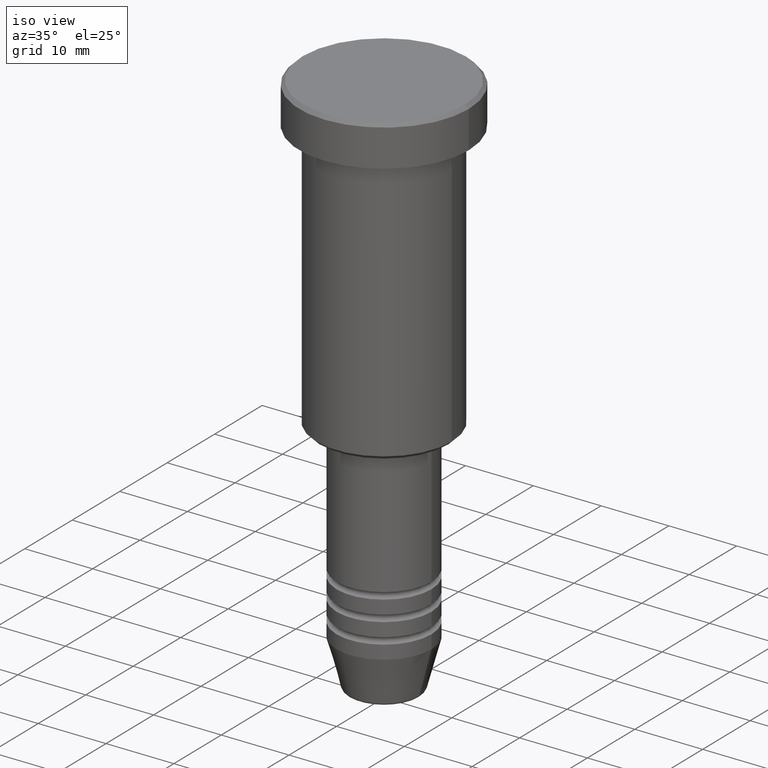
[diagram: clean part render]
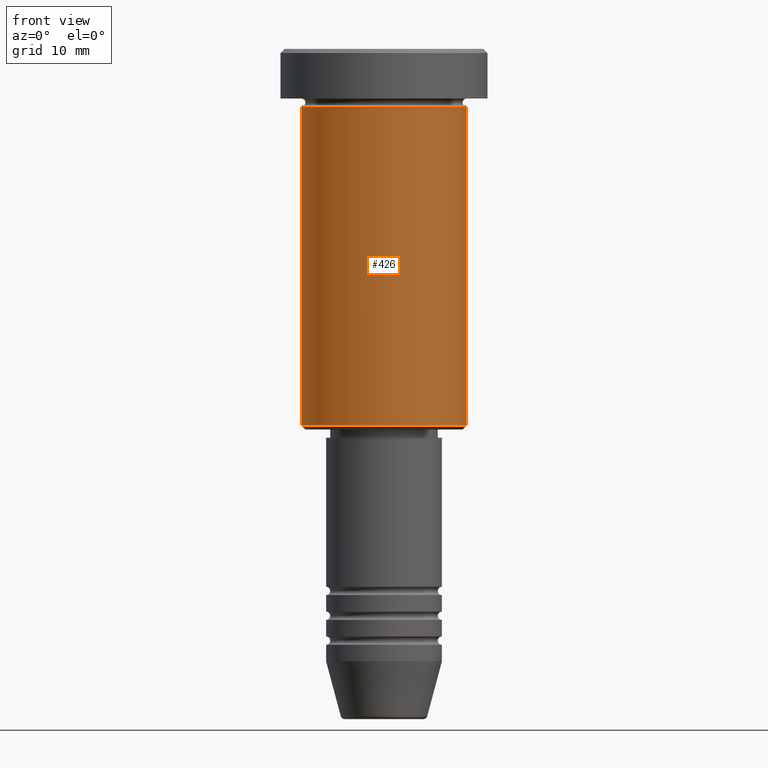
[diagram: tour spotlight — one face highlighted and labeled with its STEP entity id]
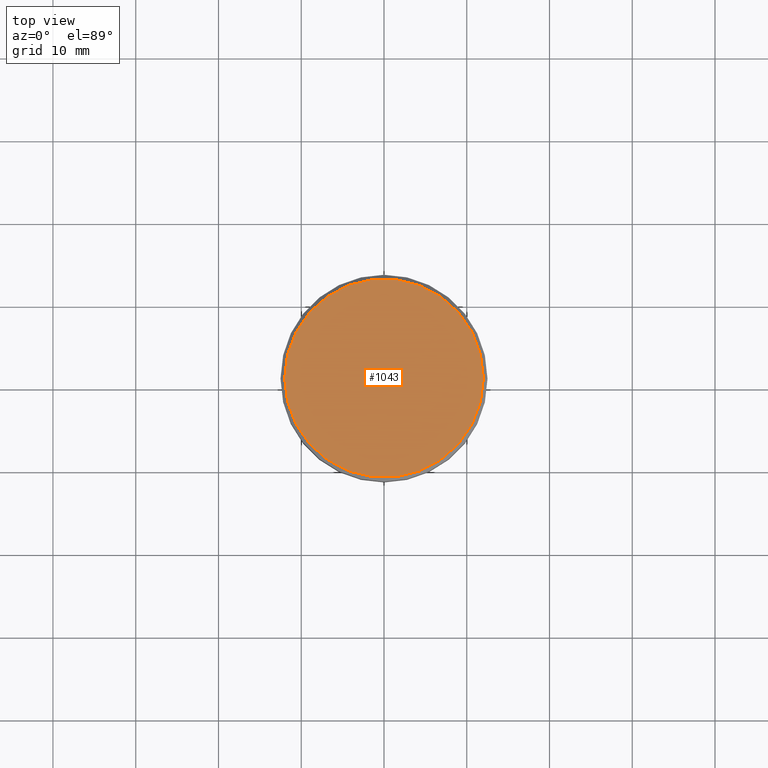
[diagram: tour spotlight — one face highlighted and labeled with its STEP entity id]
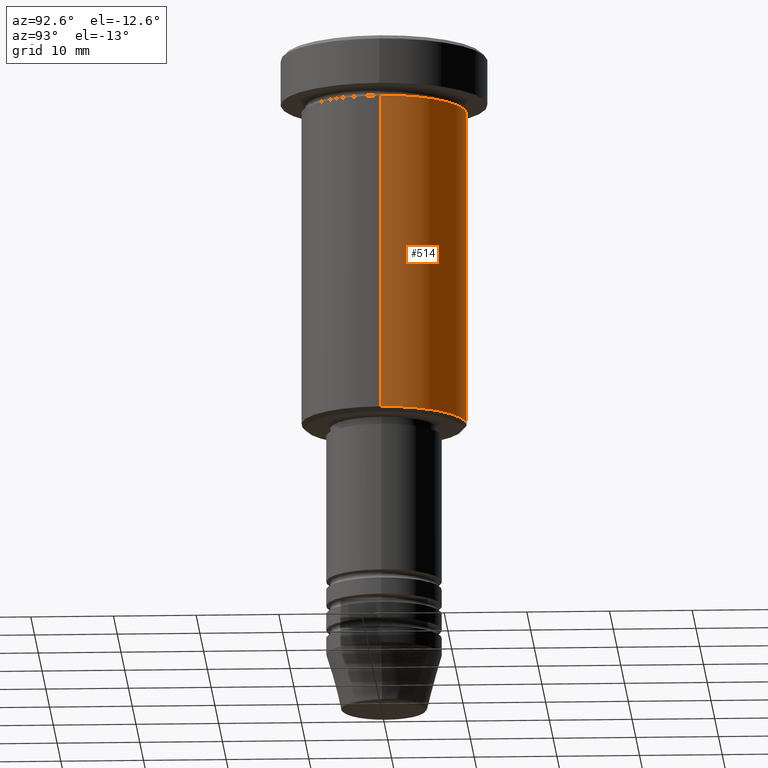
[diagram: tour spotlight — one face highlighted and labeled with its STEP entity id]
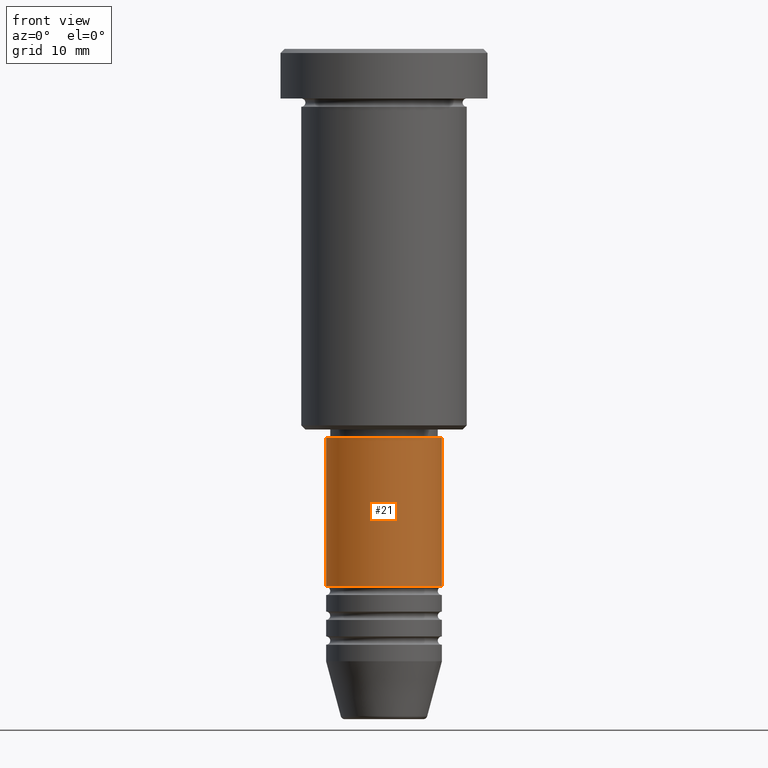
[diagram: tour spotlight — one face highlighted and labeled with its STEP entity id]
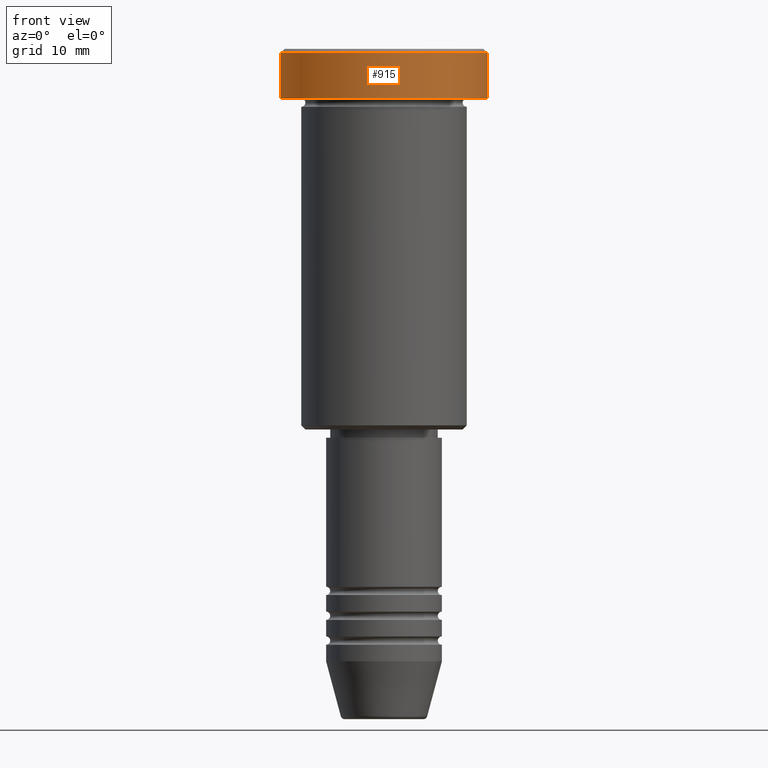
[diagram: tour spotlight — one face highlighted and labeled with its STEP entity id]
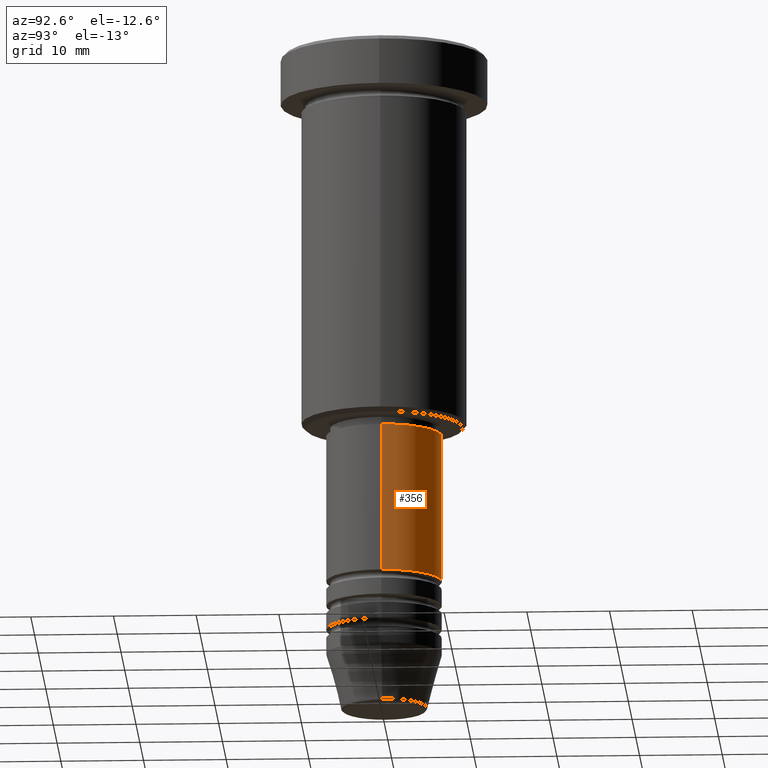
[diagram: tour spotlight — one face highlighted and labeled with its STEP entity id]
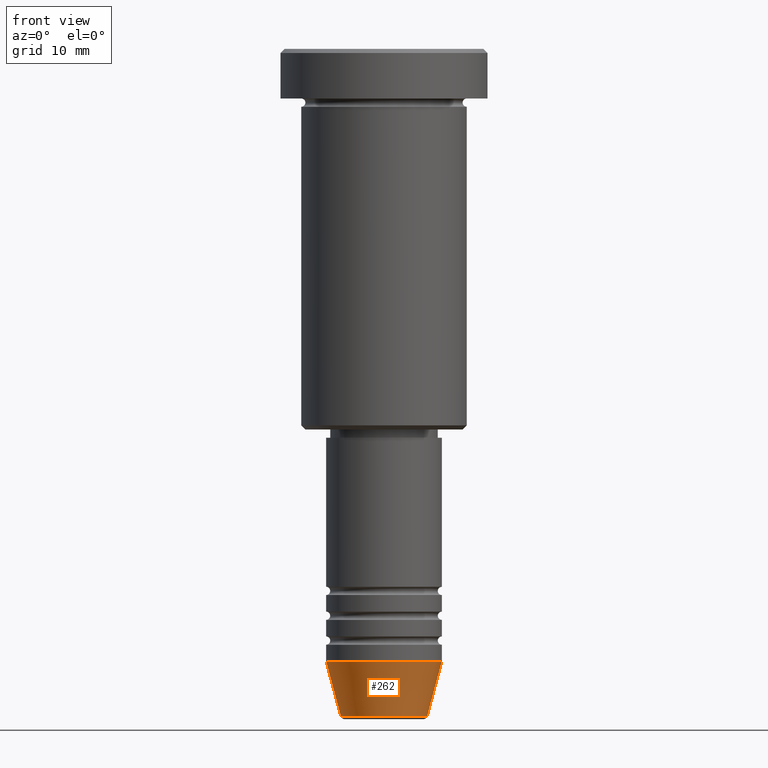
[diagram: tour spotlight — one face highlighted and labeled with its STEP entity id]
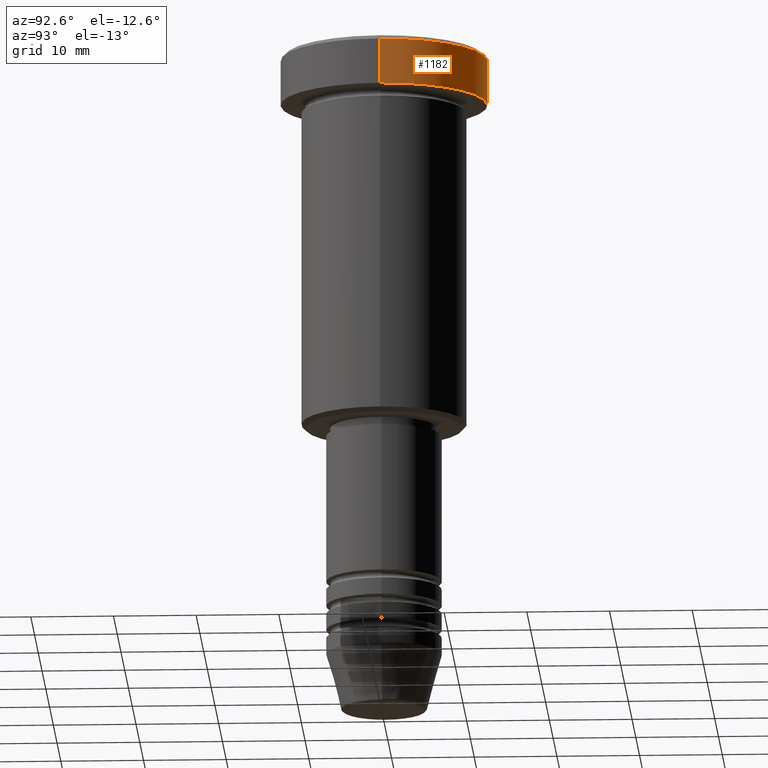
[diagram: tour spotlight — one face highlighted and labeled with its STEP entity id]
A machine part: a face-by-face anatomy tour. The part has 43 B-rep faces; the first image is the clean iso view, then the 8 largest visible faces are spotlighted one at a time (largest first), each with its STEP entity span.

Face 1 — front view, entity #426. In plain terms, the highlighted cylindrical surface (partial cylindrical patch) has radius 10 mm, axis along (-0, -0, 1).
Definition (entity closure, byte-faithful):
#16 = DIRECTION ( 'NONE',  ( 1.000000000000000000, 0.000000000000000000, 0.000000000000000000 ) ) ;
#49 = AXIS2_PLACEMENT_3D ( 'NONE', #1083, #364, #16 ) ;
#71 = CYLINDRICAL_SURFACE ( 'NONE', #541, 10.00000000000000000 ) ;
#81 = CARTESIAN_POINT ( 'NONE',  ( -10.00000000000000000, 1.224646799147353256E-15, -6.999999999999996447 ) ) ;
#115 = LINE ( 'NONE', #188, #921 ) ;
#170 = FACE_OUTER_BOUND ( 'NONE', #599, .T. ) ;
#188 = CARTESIAN_POINT ( 'NONE',  ( 10.00000000000000000, 0.000000000000000000, 0.000000000000000000 ) ) ;
#231 = EDGE_CURVE ( 'NONE', #338, #409, #658, .T. ) ;
#248 = VERTEX_POINT ( 'NONE', #740 ) ;
#265 = EDGE_CURVE ( 'NONE', #338, #483, #306, .T. ) ;
#306 = CIRCLE ( 'NONE', #440, 10.00000000000000000 ) ;
#338 = VERTEX_POINT ( 'NONE', #509 ) ;
#364 = DIRECTION ( 'NONE',  ( -0.000000000000000000, -0.000000000000000000, 1.000000000000000000 ) ) ;
#409 = VERTEX_POINT ( 'NONE', #81 ) ;
#426 = ADVANCED_FACE ( 'NONE', ( #170 ), #71, .T. ) ;
#440 = AXIS2_PLACEMENT_3D ( 'NONE', #593, #851, #573 ) ;
#466 = DIRECTION ( 'NONE',  ( -0.000000000000000000, -0.000000000000000000, 1.000000000000000000 ) ) ;
#483 = VERTEX_POINT ( 'NONE', #606 ) ;
#509 = CARTESIAN_POINT ( 'NONE',  ( -10.00000000000000000, 1.224646799147353256E-15, -45.50000000000001421 ) ) ;
#541 = AXIS2_PLACEMENT_3D ( 'NONE', #888, #814, #895 ) ;
#573 = DIRECTION ( 'NONE',  ( -1.000000000000000000, 0.000000000000000000, 0.000000000000000000 ) ) ;
#593 = CARTESIAN_POINT ( 'NONE',  ( 0.000000000000000000, 0.000000000000000000, -45.50000000000001421 ) ) ;
#599 = EDGE_LOOP ( 'NONE', ( #887, #798, #802, #808 ) ) ;
#606 = CARTESIAN_POINT ( 'NONE',  ( 10.00000000000000000, 0.000000000000000000, -45.50000000000001421 ) ) ;
#641 = EDGE_CURVE ( 'NONE', #483, #248, #115, .T. ) ;
#658 = LINE ( 'NONE', #793, #1030 ) ;
#702 = DIRECTION ( 'NONE',  ( -0.000000000000000000, -0.000000000000000000, 1.000000000000000000 ) ) ;
#740 = CARTESIAN_POINT ( 'NONE',  ( 10.00000000000000000, 0.000000000000000000, -6.999999999999996447 ) ) ;
#793 = CARTESIAN_POINT ( 'NONE',  ( -10.00000000000000000, 1.224646799147353256E-15, 0.000000000000000000 ) ) ;
#798 = ORIENTED_EDGE ( 'NONE', *, *, #265, .T. ) ;
#802 = ORIENTED_EDGE ( 'NONE', *, *, #641, .T. ) ;
#808 = ORIENTED_EDGE ( 'NONE', *, *, #1141, .F. ) ;
#814 = DIRECTION ( 'NONE',  ( -0.000000000000000000, -0.000000000000000000, 1.000000000000000000 ) ) ;
#851 = DIRECTION ( 'NONE',  ( -0.000000000000000000, -0.000000000000000000, 1.000000000000000000 ) ) ;
#887 = ORIENTED_EDGE ( 'NONE', *, *, #231, .F. ) ;
#888 = CARTESIAN_POINT ( 'NONE',  ( 0.000000000000000000, 0.000000000000000000, 0.000000000000000000 ) ) ;
#895 = DIRECTION ( 'NONE',  ( 1.000000000000000000, 0.000000000000000000, 0.000000000000000000 ) ) ;
#921 = VECTOR ( 'NONE', #466, 1000.000000000000000 ) ;
#1013 = CIRCLE ( 'NONE', #49, 10.00000000000000000 ) ;
#1030 = VECTOR ( 'NONE', #702, 1000.000000000000000 ) ;
#1083 = CARTESIAN_POINT ( 'NONE',  ( 0.000000000000000000, 0.000000000000000000, -6.999999999999996447 ) ) ;
#1141 = EDGE_CURVE ( 'NONE', #409, #248, #1013, .T. ) ;

Face 2 — top view, entity #1043. In plain terms, the highlighted planar face has unit normal (0, -0, 1).
Definition (entity closure, byte-faithful):
#2 = PLANE ( 'NONE',  #268 ) ;
#30 = AXIS2_PLACEMENT_3D ( 'NONE', #1177, #819, #1183 ) ;
#147 = VERTEX_POINT ( 'NONE', #384 ) ;
#192 = DIRECTION ( 'NONE',  ( 0.000000000000000000, -0.000000000000000000, 1.000000000000000000 ) ) ;
#268 = AXIS2_PLACEMENT_3D ( 'NONE', #646, #192, #378 ) ;
#297 = EDGE_CURVE ( 'NONE', #147, #911, #1153, .T. ) ;
#354 = CARTESIAN_POINT ( 'NONE',  ( 11.99999999999999645, 1.500192328955507537E-15, 0.000000000000000000 ) ) ;
#378 = DIRECTION ( 'NONE',  ( 1.000000000000000000, 0.000000000000000000, 0.000000000000000000 ) ) ;
#384 = CARTESIAN_POINT ( 'NONE',  ( -11.99999999999999645, 0.000000000000000000, 0.000000000000000000 ) ) ;
#461 = EDGE_CURVE ( 'NONE', #911, #147, #865, .T. ) ;
#476 = AXIS2_PLACEMENT_3D ( 'NONE', #864, #874, #856 ) ;
#610 = EDGE_LOOP ( 'NONE', ( #774, #1088 ) ) ;
#646 = CARTESIAN_POINT ( 'NONE',  ( 0.000000000000000000, 0.000000000000000000, 0.000000000000000000 ) ) ;
#774 = ORIENTED_EDGE ( 'NONE', *, *, #297, .T. ) ;
#819 = DIRECTION ( 'NONE',  ( -0.000000000000000000, -0.000000000000000000, 1.000000000000000000 ) ) ;
#856 = DIRECTION ( 'NONE',  ( 1.000000000000000000, 0.000000000000000000, 0.000000000000000000 ) ) ;
#864 = CARTESIAN_POINT ( 'NONE',  ( 0.000000000000000000, 0.000000000000000000, 0.000000000000000000 ) ) ;
#865 = CIRCLE ( 'NONE', #30, 11.99999999999999645 ) ;
#874 = DIRECTION ( 'NONE',  ( -0.000000000000000000, -0.000000000000000000, 1.000000000000000000 ) ) ;
#911 = VERTEX_POINT ( 'NONE', #354 ) ;
#1009 = FACE_OUTER_BOUND ( 'NONE', #610, .T. ) ;
#1043 = ADVANCED_FACE ( 'NONE', ( #1009 ), #2, .T. ) ;
#1088 = ORIENTED_EDGE ( 'NONE', *, *, #461, .T. ) ;
#1153 = CIRCLE ( 'NONE', #476, 11.99999999999999645 ) ;
#1177 = CARTESIAN_POINT ( 'NONE',  ( 0.000000000000000000, 0.000000000000000000, 0.000000000000000000 ) ) ;
#1183 = DIRECTION ( 'NONE',  ( 1.000000000000000000, 0.000000000000000000, 0.000000000000000000 ) ) ;

Face 3 — auxiliary view, entity #514. In plain terms, the highlighted cylindrical surface (partial cylindrical patch) has radius 10 mm, axis along (-0, -0, 1).
Definition (entity closure, byte-faithful):
#68 = DIRECTION ( 'NONE',  ( 1.000000000000000000, 0.000000000000000000, 0.000000000000000000 ) ) ;
#81 = CARTESIAN_POINT ( 'NONE',  ( -10.00000000000000000, 1.224646799147353256E-15, -6.999999999999996447 ) ) ;
#97 = EDGE_CURVE ( 'NONE', #483, #338, #196, .T. ) ;
#115 = LINE ( 'NONE', #188, #921 ) ;
#176 = AXIS2_PLACEMENT_3D ( 'NONE', #515, #880, #68 ) ;
#188 = CARTESIAN_POINT ( 'NONE',  ( 10.00000000000000000, 0.000000000000000000, 0.000000000000000000 ) ) ;
#196 = CIRCLE ( 'NONE', #633, 10.00000000000000000 ) ;
#231 = EDGE_CURVE ( 'NONE', #338, #409, #658, .T. ) ;
#248 = VERTEX_POINT ( 'NONE', #740 ) ;
#275 = CARTESIAN_POINT ( 'NONE',  ( 0.000000000000000000, 0.000000000000000000, -45.50000000000001421 ) ) ;
#338 = VERTEX_POINT ( 'NONE', #509 ) ;
#339 = ORIENTED_EDGE ( 'NONE', *, *, #641, .F. ) ;
#343 = DIRECTION ( 'NONE',  ( -0.000000000000000000, -0.000000000000000000, 1.000000000000000000 ) ) ;
#344 = ORIENTED_EDGE ( 'NONE', *, *, #231, .T. ) ;
#409 = VERTEX_POINT ( 'NONE', #81 ) ;
#433 = CARTESIAN_POINT ( 'NONE',  ( 0.000000000000000000, 0.000000000000000000, 0.000000000000000000 ) ) ;
#466 = DIRECTION ( 'NONE',  ( -0.000000000000000000, -0.000000000000000000, 1.000000000000000000 ) ) ;
#483 = VERTEX_POINT ( 'NONE', #606 ) ;
#503 = EDGE_LOOP ( 'NONE', ( #869, #344, #970, #339 ) ) ;
#509 = CARTESIAN_POINT ( 'NONE',  ( -10.00000000000000000, 1.224646799147353256E-15, -45.50000000000001421 ) ) ;
#514 = ADVANCED_FACE ( 'NONE', ( #881 ), #1159, .T. ) ;
#515 = CARTESIAN_POINT ( 'NONE',  ( 0.000000000000000000, 0.000000000000000000, -6.999999999999996447 ) ) ;
#524 = DIRECTION ( 'NONE',  ( 1.000000000000000000, 0.000000000000000000, 0.000000000000000000 ) ) ;
#542 = AXIS2_PLACEMENT_3D ( 'NONE', #433, #343, #524 ) ;
#606 = CARTESIAN_POINT ( 'NONE',  ( 10.00000000000000000, 0.000000000000000000, -45.50000000000001421 ) ) ;
#633 = AXIS2_PLACEMENT_3D ( 'NONE', #275, #1004, #979 ) ;
#641 = EDGE_CURVE ( 'NONE', #483, #248, #115, .T. ) ;
#658 = LINE ( 'NONE', #793, #1030 ) ;
#702 = DIRECTION ( 'NONE',  ( -0.000000000000000000, -0.000000000000000000, 1.000000000000000000 ) ) ;
#740 = CARTESIAN_POINT ( 'NONE',  ( 10.00000000000000000, 0.000000000000000000, -6.999999999999996447 ) ) ;
#793 = CARTESIAN_POINT ( 'NONE',  ( -10.00000000000000000, 1.224646799147353256E-15, 0.000000000000000000 ) ) ;
#869 = ORIENTED_EDGE ( 'NONE', *, *, #97, .T. ) ;
#880 = DIRECTION ( 'NONE',  ( -0.000000000000000000, -0.000000000000000000, 1.000000000000000000 ) ) ;
#881 = FACE_OUTER_BOUND ( 'NONE', #503, .T. ) ;
#921 = VECTOR ( 'NONE', #466, 1000.000000000000000 ) ;
#970 = ORIENTED_EDGE ( 'NONE', *, *, #971, .F. ) ;
#971 = EDGE_CURVE ( 'NONE', #248, #409, #1102, .T. ) ;
#979 = DIRECTION ( 'NONE',  ( -1.000000000000000000, 0.000000000000000000, 0.000000000000000000 ) ) ;
#1004 = DIRECTION ( 'NONE',  ( -0.000000000000000000, -0.000000000000000000, 1.000000000000000000 ) ) ;
#1030 = VECTOR ( 'NONE', #702, 1000.000000000000000 ) ;
#1102 = CIRCLE ( 'NONE', #176, 10.00000000000000000 ) ;
#1159 = CYLINDRICAL_SURFACE ( 'NONE', #542, 10.00000000000000000 ) ;

Face 4 — front view, entity #21. In plain terms, the highlighted cylindrical surface (partial cylindrical patch) has radius 7 mm, axis along (-0, -0, 1).
Definition (entity closure, byte-faithful):
#21 = ADVANCED_FACE ( 'NONE', ( #1078 ), #1163, .T. ) ;
#25 = AXIS2_PLACEMENT_3D ( 'NONE', #795, #608, #885 ) ;
#44 = EDGE_CURVE ( 'NONE', #815, #277, #671, .T. ) ;
#99 = VERTEX_POINT ( 'NONE', #361 ) ;
#186 = LINE ( 'NONE', #463, #478 ) ;
#249 = ORIENTED_EDGE ( 'NONE', *, *, #552, .F. ) ;
#271 = AXIS2_PLACEMENT_3D ( 'NONE', #643, #735, #547 ) ;
#277 = VERTEX_POINT ( 'NONE', #771 ) ;
#361 = CARTESIAN_POINT ( 'NONE',  ( -7.000000000000000000, 8.572527594031473190E-16, -64.99999999999998579 ) ) ;
#401 = CIRCLE ( 'NONE', #25, 7.000000000000000000 ) ;
#463 = CARTESIAN_POINT ( 'NONE',  ( -7.000000000000000000, 8.572527594031473190E-16, 0.000000000000000000 ) ) ;
#478 = VECTOR ( 'NONE', #829, 1000.000000000000000 ) ;
#493 = CARTESIAN_POINT ( 'NONE',  ( 7.000000000000000000, 0.000000000000000000, 0.000000000000000000 ) ) ;
#510 = EDGE_LOOP ( 'NONE', ( #249, #803, #536, #1062 ) ) ;
#536 = ORIENTED_EDGE ( 'NONE', *, *, #731, .T. ) ;
#547 = DIRECTION ( 'NONE',  ( 1.000000000000000000, 0.000000000000000000, 0.000000000000000000 ) ) ;
#552 = EDGE_CURVE ( 'NONE', #99, #815, #186, .T. ) ;
#579 = CARTESIAN_POINT ( 'NONE',  ( 7.000000000000000000, 0.000000000000000000, -64.99999999999998579 ) ) ;
#608 = DIRECTION ( 'NONE',  ( -0.000000000000000000, -0.000000000000000000, 1.000000000000000000 ) ) ;
#627 = DIRECTION ( 'NONE',  ( 1.000000000000000000, 0.000000000000000000, 0.000000000000000000 ) ) ;
#643 = CARTESIAN_POINT ( 'NONE',  ( 0.000000000000000000, 0.000000000000000000, 0.000000000000000000 ) ) ;
#671 = CIRCLE ( 'NONE', #693, 7.000000000000000000 ) ;
#693 = AXIS2_PLACEMENT_3D ( 'NONE', #717, #1074, #627 ) ;
#706 = VERTEX_POINT ( 'NONE', #579 ) ;
#717 = CARTESIAN_POINT ( 'NONE',  ( 0.000000000000000000, 0.000000000000000000, -47.00000000000001421 ) ) ;
#731 = EDGE_CURVE ( 'NONE', #706, #277, #1023, .T. ) ;
#735 = DIRECTION ( 'NONE',  ( -0.000000000000000000, -0.000000000000000000, 1.000000000000000000 ) ) ;
#771 = CARTESIAN_POINT ( 'NONE',  ( 7.000000000000000000, 0.000000000000000000, -47.00000000000001421 ) ) ;
#795 = CARTESIAN_POINT ( 'NONE',  ( 0.000000000000000000, 0.000000000000000000, -64.99999999999998579 ) ) ;
#803 = ORIENTED_EDGE ( 'NONE', *, *, #984, .T. ) ;
#815 = VERTEX_POINT ( 'NONE', #860 ) ;
#828 = VECTOR ( 'NONE', #1111, 1000.000000000000000 ) ;
#829 = DIRECTION ( 'NONE',  ( -0.000000000000000000, -0.000000000000000000, 1.000000000000000000 ) ) ;
#860 = CARTESIAN_POINT ( 'NONE',  ( -7.000000000000000000, 8.572527594031473190E-16, -47.00000000000001421 ) ) ;
#885 = DIRECTION ( 'NONE',  ( 1.000000000000000000, 0.000000000000000000, 0.000000000000000000 ) ) ;
#984 = EDGE_CURVE ( 'NONE', #99, #706, #401, .T. ) ;
#1023 = LINE ( 'NONE', #493, #828 ) ;
#1062 = ORIENTED_EDGE ( 'NONE', *, *, #44, .F. ) ;
#1074 = DIRECTION ( 'NONE',  ( -0.000000000000000000, -0.000000000000000000, 1.000000000000000000 ) ) ;
#1078 = FACE_OUTER_BOUND ( 'NONE', #510, .T. ) ;
#1111 = DIRECTION ( 'NONE',  ( -0.000000000000000000, -0.000000000000000000, 1.000000000000000000 ) ) ;
#1163 = CYLINDRICAL_SURFACE ( 'NONE', #271, 7.000000000000000000 ) ;

Face 5 — front view, entity #915. In plain terms, the highlighted cylindrical surface (partial cylindrical patch) has radius 12.5 mm, axis along (-0, -0, 1).
Definition (entity closure, byte-faithful):
#6 = ORIENTED_EDGE ( 'NONE', *, *, #82, .T. ) ;
#82 = EDGE_CURVE ( 'NONE', #963, #226, #1065, .T. ) ;
#92 = CIRCLE ( 'NONE', #997, 12.50000000000000000 ) ;
#199 = CIRCLE ( 'NONE', #522, 12.50000000000000000 ) ;
#226 = VERTEX_POINT ( 'NONE', #1109 ) ;
#243 = CARTESIAN_POINT ( 'NONE',  ( 12.50000000000000000, 0.000000000000000000, -5.999999999999996447 ) ) ;
#253 = CARTESIAN_POINT ( 'NONE',  ( -12.50000000000000000, 1.530808498934191521E-15, -0.5000000000000056621 ) ) ;
#302 = AXIS2_PLACEMENT_3D ( 'NONE', #438, #700, #521 ) ;
#315 = DIRECTION ( 'NONE',  ( -0.000000000000000000, -0.000000000000000000, 1.000000000000000000 ) ) ;
#396 = CARTESIAN_POINT ( 'NONE',  ( 0.000000000000000000, 0.000000000000000000, -5.999999999999996447 ) ) ;
#410 = EDGE_LOOP ( 'NONE', ( #906, #1178, #6, #418 ) ) ;
#418 = ORIENTED_EDGE ( 'NONE', *, *, #603, .T. ) ;
#438 = CARTESIAN_POINT ( 'NONE',  ( 0.000000000000000000, 0.000000000000000000, 0.000000000000000000 ) ) ;
#445 = DIRECTION ( 'NONE',  ( -0.000000000000000000, -0.000000000000000000, 1.000000000000000000 ) ) ;
#454 = LINE ( 'NONE', #821, #473 ) ;
#473 = VECTOR ( 'NONE', #649, 1000.000000000000000 ) ;
#521 = DIRECTION ( 'NONE',  ( 1.000000000000000000, 0.000000000000000000, 0.000000000000000000 ) ) ;
#522 = AXIS2_PLACEMENT_3D ( 'NONE', #1000, #1020, #833 ) ;
#526 = FACE_OUTER_BOUND ( 'NONE', #410, .T. ) ;
#603 = EDGE_CURVE ( 'NONE', #226, #897, #199, .T. ) ;
#649 = DIRECTION ( 'NONE',  ( -0.000000000000000000, -0.000000000000000000, 1.000000000000000000 ) ) ;
#689 = VERTEX_POINT ( 'NONE', #1047 ) ;
#700 = DIRECTION ( 'NONE',  ( -0.000000000000000000, -0.000000000000000000, 1.000000000000000000 ) ) ;
#727 = EDGE_CURVE ( 'NONE', #689, #963, #92, .T. ) ;
#821 = CARTESIAN_POINT ( 'NONE',  ( -12.50000000000000000, 1.530808498934191521E-15, 0.000000000000000000 ) ) ;
#833 = DIRECTION ( 'NONE',  ( 1.000000000000000000, 0.000000000000000000, 0.000000000000000000 ) ) ;
#894 = CYLINDRICAL_SURFACE ( 'NONE', #302, 12.50000000000000000 ) ;
#897 = VERTEX_POINT ( 'NONE', #253 ) ;
#906 = ORIENTED_EDGE ( 'NONE', *, *, #1022, .F. ) ;
#915 = ADVANCED_FACE ( 'NONE', ( #526 ), #894, .T. ) ;
#957 = DIRECTION ( 'NONE',  ( 1.000000000000000000, 0.000000000000000000, 0.000000000000000000 ) ) ;
#963 = VERTEX_POINT ( 'NONE', #243 ) ;
#983 = CARTESIAN_POINT ( 'NONE',  ( 12.50000000000000000, 0.000000000000000000, 0.000000000000000000 ) ) ;
#994 = VECTOR ( 'NONE', #445, 1000.000000000000000 ) ;
#997 = AXIS2_PLACEMENT_3D ( 'NONE', #396, #315, #957 ) ;
#1000 = CARTESIAN_POINT ( 'NONE',  ( 0.000000000000000000, 0.000000000000000000, -0.5000000000000056621 ) ) ;
#1020 = DIRECTION ( 'NONE',  ( 0.000000000000000000, 0.000000000000000000, -1.000000000000000000 ) ) ;
#1022 = EDGE_CURVE ( 'NONE', #689, #897, #454, .T. ) ;
#1047 = CARTESIAN_POINT ( 'NONE',  ( -12.50000000000000000, 1.530808498934191521E-15, -5.999999999999996447 ) ) ;
#1065 = LINE ( 'NONE', #983, #994 ) ;
#1109 = CARTESIAN_POINT ( 'NONE',  ( 12.50000000000000000, 0.000000000000000000, -0.5000000000000056621 ) ) ;
#1178 = ORIENTED_EDGE ( 'NONE', *, *, #727, .T. ) ;

Face 6 — auxiliary view, entity #356. In plain terms, the highlighted cylindrical surface (partial cylindrical patch) has radius 7 mm, axis along (-0, -0, 1).
Definition (entity closure, byte-faithful):
#99 = VERTEX_POINT ( 'NONE', #361 ) ;
#105 = CIRCLE ( 'NONE', #420, 7.000000000000000000 ) ;
#135 = CARTESIAN_POINT ( 'NONE',  ( 0.000000000000000000, 0.000000000000000000, -64.99999999999998579 ) ) ;
#142 = ORIENTED_EDGE ( 'NONE', *, *, #731, .F. ) ;
#150 = CARTESIAN_POINT ( 'NONE',  ( 0.000000000000000000, 0.000000000000000000, 0.000000000000000000 ) ) ;
#186 = LINE ( 'NONE', #463, #478 ) ;
#266 = DIRECTION ( 'NONE',  ( 1.000000000000000000, 0.000000000000000000, 0.000000000000000000 ) ) ;
#277 = VERTEX_POINT ( 'NONE', #771 ) ;
#299 = DIRECTION ( 'NONE',  ( 1.000000000000000000, 0.000000000000000000, 0.000000000000000000 ) ) ;
#356 = ADVANCED_FACE ( 'NONE', ( #942 ), #582, .T. ) ;
#361 = CARTESIAN_POINT ( 'NONE',  ( -7.000000000000000000, 8.572527594031473190E-16, -64.99999999999998579 ) ) ;
#393 = DIRECTION ( 'NONE',  ( 1.000000000000000000, 0.000000000000000000, 0.000000000000000000 ) ) ;
#420 = AXIS2_PLACEMENT_3D ( 'NONE', #913, #1098, #266 ) ;
#460 = ORIENTED_EDGE ( 'NONE', *, *, #1060, .F. ) ;
#463 = CARTESIAN_POINT ( 'NONE',  ( -7.000000000000000000, 8.572527594031473190E-16, 0.000000000000000000 ) ) ;
#478 = VECTOR ( 'NONE', #829, 1000.000000000000000 ) ;
#493 = CARTESIAN_POINT ( 'NONE',  ( 7.000000000000000000, 0.000000000000000000, 0.000000000000000000 ) ) ;
#552 = EDGE_CURVE ( 'NONE', #99, #815, #186, .T. ) ;
#579 = CARTESIAN_POINT ( 'NONE',  ( 7.000000000000000000, 0.000000000000000000, -64.99999999999998579 ) ) ;
#582 = CYLINDRICAL_SURFACE ( 'NONE', #919, 7.000000000000000000 ) ;
#596 = ORIENTED_EDGE ( 'NONE', *, *, #1166, .T. ) ;
#706 = VERTEX_POINT ( 'NONE', #579 ) ;
#731 = EDGE_CURVE ( 'NONE', #706, #277, #1023, .T. ) ;
#759 = DIRECTION ( 'NONE',  ( -0.000000000000000000, -0.000000000000000000, 1.000000000000000000 ) ) ;
#771 = CARTESIAN_POINT ( 'NONE',  ( 7.000000000000000000, 0.000000000000000000, -47.00000000000001421 ) ) ;
#815 = VERTEX_POINT ( 'NONE', #860 ) ;
#828 = VECTOR ( 'NONE', #1111, 1000.000000000000000 ) ;
#829 = DIRECTION ( 'NONE',  ( -0.000000000000000000, -0.000000000000000000, 1.000000000000000000 ) ) ;
#857 = EDGE_LOOP ( 'NONE', ( #596, #936, #460, #142 ) ) ;
#860 = CARTESIAN_POINT ( 'NONE',  ( -7.000000000000000000, 8.572527594031473190E-16, -47.00000000000001421 ) ) ;
#913 = CARTESIAN_POINT ( 'NONE',  ( 0.000000000000000000, 0.000000000000000000, -47.00000000000001421 ) ) ;
#919 = AXIS2_PLACEMENT_3D ( 'NONE', #150, #1052, #393 ) ;
#936 = ORIENTED_EDGE ( 'NONE', *, *, #552, .T. ) ;
#942 = FACE_OUTER_BOUND ( 'NONE', #857, .T. ) ;
#1023 = LINE ( 'NONE', #493, #828 ) ;
#1052 = DIRECTION ( 'NONE',  ( -0.000000000000000000, -0.000000000000000000, 1.000000000000000000 ) ) ;
#1060 = EDGE_CURVE ( 'NONE', #277, #815, #105, .T. ) ;
#1068 = CIRCLE ( 'NONE', #1125, 7.000000000000000000 ) ;
#1098 = DIRECTION ( 'NONE',  ( -0.000000000000000000, -0.000000000000000000, 1.000000000000000000 ) ) ;
#1111 = DIRECTION ( 'NONE',  ( -0.000000000000000000, -0.000000000000000000, 1.000000000000000000 ) ) ;
#1125 = AXIS2_PLACEMENT_3D ( 'NONE', #135, #759, #299 ) ;
#1166 = EDGE_CURVE ( 'NONE', #706, #99, #1068, .T. ) ;

Face 7 — front view, entity #262. In plain terms, the highlighted conical surface has half-angle 15 deg.
Definition (entity closure, byte-faithful):
#35 = EDGE_CURVE ( 'NONE', #363, #523, #474, .T. ) ;
#73 = AXIS2_PLACEMENT_3D ( 'NONE', #647, #929, #377 ) ;
#80 = FACE_OUTER_BOUND ( 'NONE', #388, .T. ) ;
#144 = DIRECTION ( 'NONE',  ( 1.000000000000000000, 0.000000000000000000, 0.000000000000000000 ) ) ;
#166 = CARTESIAN_POINT ( 'NONE',  ( 5.223655072137187716, 0.000000000000000000, -80.62940952255128479 ) ) ;
#171 = EDGE_CURVE ( 'NONE', #523, #1082, #1024, .T. ) ;
#184 = DIRECTION ( 'NONE',  ( -0.000000000000000000, -0.000000000000000000, 1.000000000000000000 ) ) ;
#190 = ORIENTED_EDGE ( 'NONE', *, *, #691, .F. ) ;
#223 = DIRECTION ( 'NONE',  ( -0.000000000000000000, -0.000000000000000000, 1.000000000000000000 ) ) ;
#232 = DIRECTION ( 'NONE',  ( 0.2588190451025214056, 0.000000000000000000, 0.9659258262890680902 ) ) ;
#262 = ADVANCED_FACE ( 'NONE', ( #80 ), #520, .T. ) ;
#288 = VECTOR ( 'NONE', #232, 1000.000000000000000 ) ;
#317 = CARTESIAN_POINT ( 'NONE',  ( -5.223655072137187716, 7.484830028987059188E-16, -80.62940952255128479 ) ) ;
#327 = AXIS2_PLACEMENT_3D ( 'NONE', #813, #184, #908 ) ;
#363 = VERTEX_POINT ( 'NONE', #317 ) ;
#377 = DIRECTION ( 'NONE',  ( 1.000000000000000000, 0.000000000000000000, 0.000000000000000000 ) ) ;
#388 = EDGE_LOOP ( 'NONE', ( #190, #737, #850, #743 ) ) ;
#465 = CARTESIAN_POINT ( 'NONE',  ( 7.000000000000000000, 0.000000000000000000, -74.00000000000001421 ) ) ;
#474 = CIRCLE ( 'NONE', #327, 5.223655072137187716 ) ;
#520 = CONICAL_SURFACE ( 'NONE', #1126, 7.000000000000000000, 0.2617993877991501295 ) ;
#523 = VERTEX_POINT ( 'NONE', #166 ) ;
#532 = VERTEX_POINT ( 'NONE', #1066 ) ;
#601 = EDGE_CURVE ( 'NONE', #532, #1082, #940, .T. ) ;
#647 = CARTESIAN_POINT ( 'NONE',  ( 0.000000000000000000, 0.000000000000000000, -74.00000000000001421 ) ) ;
#691 = EDGE_CURVE ( 'NONE', #363, #532, #1042, .T. ) ;
#737 = ORIENTED_EDGE ( 'NONE', *, *, #35, .T. ) ;
#743 = ORIENTED_EDGE ( 'NONE', *, *, #601, .F. ) ;
#787 = CARTESIAN_POINT ( 'NONE',  ( 0.000000000000000000, 0.000000000000000000, -74.00000000000001421 ) ) ;
#813 = CARTESIAN_POINT ( 'NONE',  ( 0.000000000000000000, 0.000000000000000000, -80.62940952255128479 ) ) ;
#850 = ORIENTED_EDGE ( 'NONE', *, *, #171, .T. ) ;
#875 = DIRECTION ( 'NONE',  ( -0.2588190451025214056, 3.169619151431772953E-17, 0.9659258262890680902 ) ) ;
#908 = DIRECTION ( 'NONE',  ( 1.000000000000000000, 0.000000000000000000, 0.000000000000000000 ) ) ;
#929 = DIRECTION ( 'NONE',  ( -0.000000000000000000, -0.000000000000000000, 1.000000000000000000 ) ) ;
#940 = CIRCLE ( 'NONE', #73, 7.000000000000000000 ) ;
#1024 = LINE ( 'NONE', #1113, #288 ) ;
#1029 = CARTESIAN_POINT ( 'NONE',  ( -7.000000000000000000, 8.572527594031473190E-16, -74.00000000000001421 ) ) ;
#1042 = LINE ( 'NONE', #1029, #1071 ) ;
#1066 = CARTESIAN_POINT ( 'NONE',  ( -7.000000000000000000, 8.572527594031473190E-16, -74.00000000000001421 ) ) ;
#1071 = VECTOR ( 'NONE', #875, 1000.000000000000000 ) ;
#1082 = VERTEX_POINT ( 'NONE', #465 ) ;
#1113 = CARTESIAN_POINT ( 'NONE',  ( 7.000000000000000000, 0.000000000000000000, -74.00000000000001421 ) ) ;
#1126 = AXIS2_PLACEMENT_3D ( 'NONE', #787, #223, #144 ) ;

Face 8 — auxiliary view, entity #1182. In plain terms, the highlighted cylindrical surface (partial cylindrical patch) has radius 12.5 mm, axis along (-0, -0, 1).
Definition (entity closure, byte-faithful):
#48 = FACE_OUTER_BOUND ( 'NONE', #999, .T. ) ;
#58 = ORIENTED_EDGE ( 'NONE', *, *, #82, .F. ) ;
#82 = EDGE_CURVE ( 'NONE', #963, #226, #1065, .T. ) ;
#159 = AXIS2_PLACEMENT_3D ( 'NONE', #663, #389, #214 ) ;
#180 = CIRCLE ( 'NONE', #255, 12.50000000000000000 ) ;
#214 = DIRECTION ( 'NONE',  ( 1.000000000000000000, 0.000000000000000000, 0.000000000000000000 ) ) ;
#226 = VERTEX_POINT ( 'NONE', #1109 ) ;
#243 = CARTESIAN_POINT ( 'NONE',  ( 12.50000000000000000, 0.000000000000000000, -5.999999999999996447 ) ) ;
#253 = CARTESIAN_POINT ( 'NONE',  ( -12.50000000000000000, 1.530808498934191521E-15, -0.5000000000000056621 ) ) ;
#255 = AXIS2_PLACEMENT_3D ( 'NONE', #379, #910, #653 ) ;
#309 = CARTESIAN_POINT ( 'NONE',  ( 0.000000000000000000, 0.000000000000000000, -0.5000000000000056621 ) ) ;
#379 = CARTESIAN_POINT ( 'NONE',  ( 0.000000000000000000, 0.000000000000000000, -5.999999999999996447 ) ) ;
#389 = DIRECTION ( 'NONE',  ( -0.000000000000000000, -0.000000000000000000, 1.000000000000000000 ) ) ;
#445 = DIRECTION ( 'NONE',  ( -0.000000000000000000, -0.000000000000000000, 1.000000000000000000 ) ) ;
#454 = LINE ( 'NONE', #821, #473 ) ;
#473 = VECTOR ( 'NONE', #649, 1000.000000000000000 ) ;
#504 = DIRECTION ( 'NONE',  ( 0.000000000000000000, 0.000000000000000000, -1.000000000000000000 ) ) ;
#581 = ORIENTED_EDGE ( 'NONE', *, *, #1022, .T. ) ;
#587 = EDGE_CURVE ( 'NONE', #963, #689, #180, .T. ) ;
#649 = DIRECTION ( 'NONE',  ( -0.000000000000000000, -0.000000000000000000, 1.000000000000000000 ) ) ;
#653 = DIRECTION ( 'NONE',  ( 1.000000000000000000, 0.000000000000000000, 0.000000000000000000 ) ) ;
#663 = CARTESIAN_POINT ( 'NONE',  ( 0.000000000000000000, 0.000000000000000000, 0.000000000000000000 ) ) ;
#689 = VERTEX_POINT ( 'NONE', #1047 ) ;
#756 = EDGE_CURVE ( 'NONE', #897, #226, #902, .T. ) ;
#775 = DIRECTION ( 'NONE',  ( 1.000000000000000000, 0.000000000000000000, 0.000000000000000000 ) ) ;
#821 = CARTESIAN_POINT ( 'NONE',  ( -12.50000000000000000, 1.530808498934191521E-15, 0.000000000000000000 ) ) ;
#854 = CYLINDRICAL_SURFACE ( 'NONE', #159, 12.50000000000000000 ) ;
#897 = VERTEX_POINT ( 'NONE', #253 ) ;
#902 = CIRCLE ( 'NONE', #1031, 12.50000000000000000 ) ;
#910 = DIRECTION ( 'NONE',  ( -0.000000000000000000, -0.000000000000000000, 1.000000000000000000 ) ) ;
#963 = VERTEX_POINT ( 'NONE', #243 ) ;
#983 = CARTESIAN_POINT ( 'NONE',  ( 12.50000000000000000, 0.000000000000000000, 0.000000000000000000 ) ) ;
#994 = VECTOR ( 'NONE', #445, 1000.000000000000000 ) ;
#999 = EDGE_LOOP ( 'NONE', ( #1007, #581, #1040, #58 ) ) ;
#1007 = ORIENTED_EDGE ( 'NONE', *, *, #587, .T. ) ;
#1022 = EDGE_CURVE ( 'NONE', #689, #897, #454, .T. ) ;
#1031 = AXIS2_PLACEMENT_3D ( 'NONE', #309, #504, #775 ) ;
#1040 = ORIENTED_EDGE ( 'NONE', *, *, #756, .T. ) ;
#1047 = CARTESIAN_POINT ( 'NONE',  ( -12.50000000000000000, 1.530808498934191521E-15, -5.999999999999996447 ) ) ;
#1065 = LINE ( 'NONE', #983, #994 ) ;
#1109 = CARTESIAN_POINT ( 'NONE',  ( 12.50000000000000000, 0.000000000000000000, -0.5000000000000056621 ) ) ;
#1182 = ADVANCED_FACE ( 'NONE', ( #48 ), #854, .T. ) ;